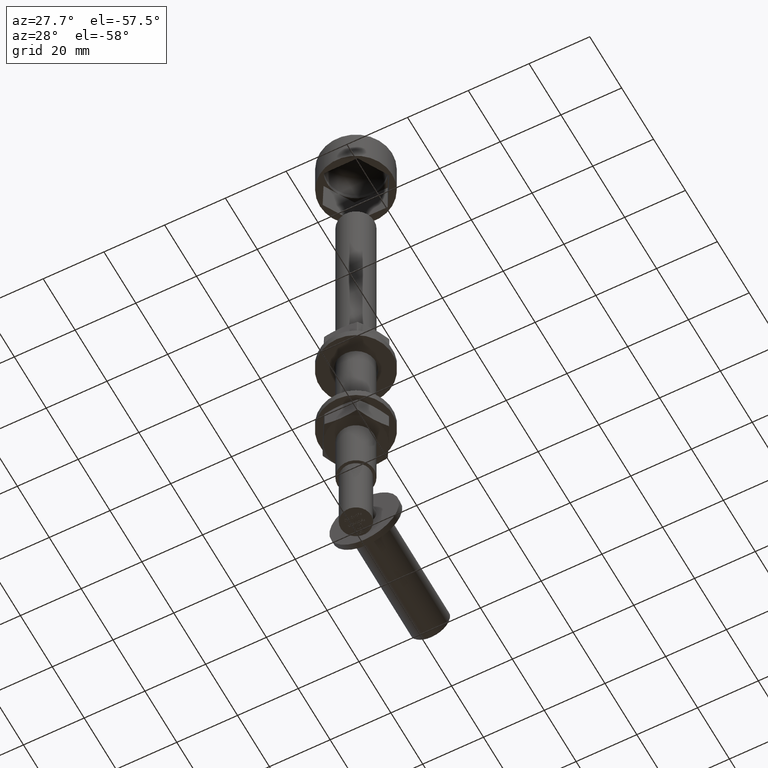
[diagram: clean part render]
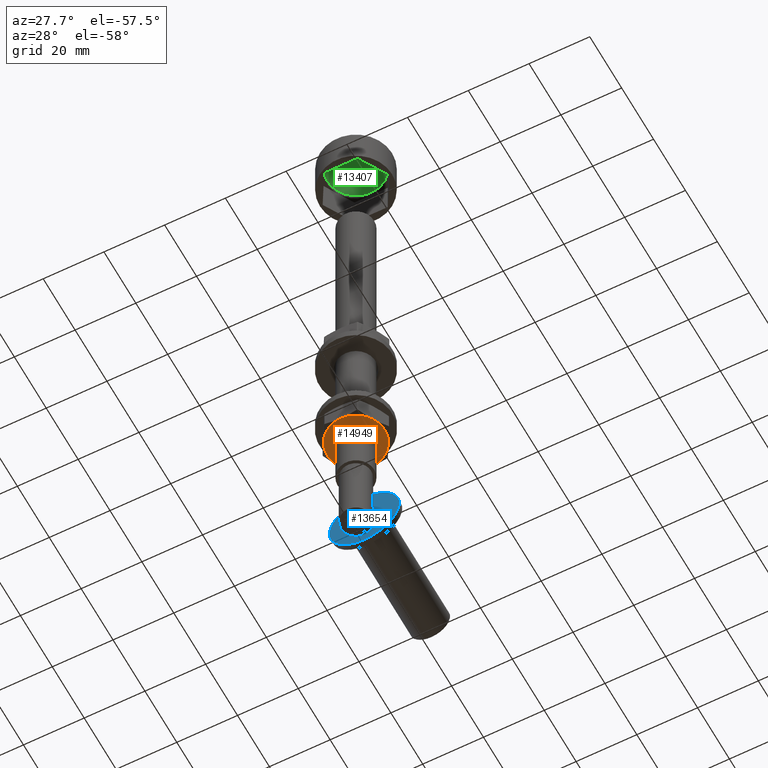
[diagram: same view with three faces highlighted in distinct colors, each labeled with its STEP entity id]
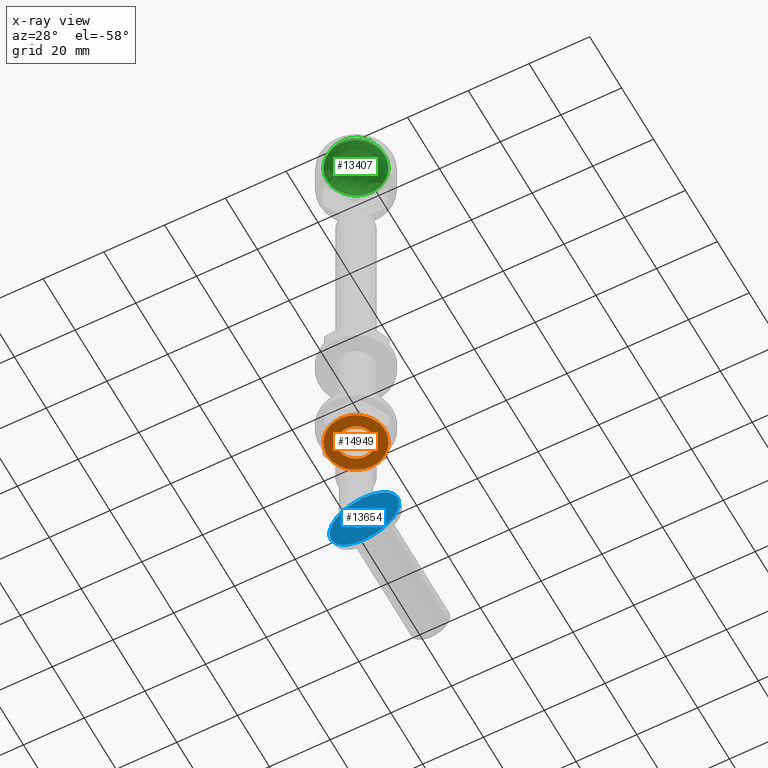
[diagram: x-ray of the same camera — body ghosted, the three highlighted faces saturated]
A machine part, auxiliary view with three faces highlighted in distinct colors.
The next image is the same camera in x-ray (body ghosted, the three faces saturated) — at least one of them is partly hidden behind the body in this view.
Their STEP definitions:

[orange] entity #14949 — the highlighted planar face has unit normal (0, 0, 1).
#145 = AXIS2_PLACEMENT_3D ( 'NONE', #13799, #7637, #389 ) ;
#160 = DIRECTION ( 'NONE',  ( -0.000000000000000000, -1.000000000000000000, -0.000000000000000000 ) ) ;
#305 = DIRECTION ( 'NONE',  ( -0.000000000000000000, -1.000000000000000000, -0.000000000000000000 ) ) ;
#344 = PLANE ( 'NONE',  #145 ) ;
#389 = DIRECTION ( 'NONE',  ( 0.000000000000000000, -0.000000000000000000, 1.000000000000000000 ) ) ;
#446 = EDGE_CURVE ( 'NONE', #7362, #8914, #2697, .T. ) ;
#586 = CIRCLE ( 'NONE', #2521, 5.600000000000000533 ) ;
#908 = EDGE_CURVE ( 'NONE', #10890, #10890, #586, .T. ) ;
#1633 = CARTESIAN_POINT ( 'NONE',  ( 0.000000000000000000, -3.500000000000000000, 0.000000000000000000 ) ) ;
#1756 = DIRECTION ( 'NONE',  ( -3.552713678800500929E-15, 0.000000000000000000, 1.000000000000000000 ) ) ;
#1961 = VERTEX_POINT ( 'NONE', #12492 ) ;
#1995 = DIRECTION ( 'NONE',  ( 0.000000000000000000, 0.000000000000000000, -1.000000000000000000 ) ) ;
#2243 = EDGE_CURVE ( 'NONE', #1961, #10273, #15494, .T. ) ;
#2320 = DIRECTION ( 'NONE',  ( -0.000000000000000000, -1.000000000000000000, -0.000000000000000000 ) ) ;
#2521 = AXIS2_PLACEMENT_3D ( 'NONE', #9905, #6226, #6073 ) ;
#2606 = CARTESIAN_POINT ( 'NONE',  ( 0.000000000000000000, -3.500000000000000000, 0.000000000000000000 ) ) ;
#2697 = CIRCLE ( 'NONE', #10264, 9.499999999999998224 ) ;
#3327 = CARTESIAN_POINT ( 'NONE',  ( 0.000000000000000000, -3.500000000000000000, 9.499999999999998224 ) ) ;
#3432 = EDGE_CURVE ( 'NONE', #6619, #1961, #11548, .T. ) ;
#3453 = CARTESIAN_POINT ( 'NONE',  ( 0.000000000000000000, -3.500000000000000000, 0.000000000000000000 ) ) ;
#3855 = DIRECTION ( 'NONE',  ( 0.000000000000000000, 0.000000000000000000, 1.000000000000000000 ) ) ;
#3935 = DIRECTION ( 'NONE',  ( -0.000000000000000000, -1.000000000000000000, -0.000000000000000000 ) ) ;
#4401 = AXIS2_PLACEMENT_3D ( 'NONE', #1633, #305, #6634 ) ;
#4455 = CARTESIAN_POINT ( 'NONE',  ( 0.000000000000000000, -3.500000000000000000, 0.000000000000000000 ) ) ;
#4600 = DIRECTION ( 'NONE',  ( 0.000000000000000000, -1.000000000000000000, 0.000000000000000000 ) ) ;
#4880 = EDGE_LOOP ( 'NONE', ( #15120 ) ) ;
#4921 = DIRECTION ( 'NONE',  ( 0.000000000000000000, 0.000000000000000000, 1.000000000000000000 ) ) ;
#5030 = CARTESIAN_POINT ( 'NONE',  ( 0.000000000000000000, -3.500000000000000000, 0.000000000000000000 ) ) ;
#5038 = CARTESIAN_POINT ( 'NONE',  ( -8.227241335952165002, -3.500000000000000000, -4.750000000000000000 ) ) ;
#5282 = ORIENTED_EDGE ( 'NONE', *, *, #2243, .T. ) ;
#5704 = CIRCLE ( 'NONE', #7598, 9.499999999999998224 ) ;
#6073 = DIRECTION ( 'NONE',  ( 0.000000000000000000, 0.000000000000000000, 1.000000000000000000 ) ) ;
#6226 = DIRECTION ( 'NONE',  ( 0.000000000000000000, 1.000000000000000000, 0.000000000000000000 ) ) ;
#6246 = ORIENTED_EDGE ( 'NONE', *, *, #11069, .T. ) ;
#6418 = FACE_OUTER_BOUND ( 'NONE', #6677, .T. ) ;
#6619 = VERTEX_POINT ( 'NONE', #11978 ) ;
#6634 = DIRECTION ( 'NONE',  ( 0.000000000000000000, 0.000000000000000000, 1.000000000000000000 ) ) ;
#6677 = EDGE_LOOP ( 'NONE', ( #5282, #13788, #12709, #6985, #6246, #9829 ) ) ;
#6985 = ORIENTED_EDGE ( 'NONE', *, *, #446, .T. ) ;
#7149 = AXIS2_PLACEMENT_3D ( 'NONE', #4455, #15274, #1756 ) ;
#7362 = VERTEX_POINT ( 'NONE', #5038 ) ;
#7444 = AXIS2_PLACEMENT_3D ( 'NONE', #2606, #160, #3855 ) ;
#7598 = AXIS2_PLACEMENT_3D ( 'NONE', #11856, #4600, #1995 ) ;
#7634 = DIRECTION ( 'NONE',  ( 1.776356839400250465E-15, 0.000000000000000000, 1.000000000000000000 ) ) ;
#7637 = DIRECTION ( 'NONE',  ( 0.000000000000000000, 1.000000000000000000, 0.000000000000000000 ) ) ;
#8423 = CIRCLE ( 'NONE', #7444, 9.499999999999998224 ) ;
#8449 = AXIS2_PLACEMENT_3D ( 'NONE', #3453, #2320, #4921 ) ;
#8831 = CARTESIAN_POINT ( 'NONE',  ( -8.227241335952165002, -3.500000000000000000, 4.749999999999999112 ) ) ;
#8914 = VERTEX_POINT ( 'NONE', #11160 ) ;
#9829 = ORIENTED_EDGE ( 'NONE', *, *, #3432, .T. ) ;
#9905 = CARTESIAN_POINT ( 'NONE',  ( 0.000000000000000000, -3.500000000000000000, 0.000000000000000000 ) ) ;
#10264 = AXIS2_PLACEMENT_3D ( 'NONE', #5030, #3935, #7634 ) ;
#10273 = VERTEX_POINT ( 'NONE', #3327 ) ;
#10890 = VERTEX_POINT ( 'NONE', #12604 ) ;
#11069 = EDGE_CURVE ( 'NONE', #8914, #6619, #5704, .T. ) ;
#11160 = CARTESIAN_POINT ( 'NONE',  ( -1.502314598737159623E-15, -3.500000000000000000, -9.499999999999998224 ) ) ;
#11165 = EDGE_CURVE ( 'NONE', #14694, #7362, #12076, .T. ) ;
#11548 = CIRCLE ( 'NONE', #4401, 9.499999999999998224 ) ;
#11856 = CARTESIAN_POINT ( 'NONE',  ( 0.000000000000000000, -3.500000000000000000, 0.000000000000000000 ) ) ;
#11978 = CARTESIAN_POINT ( 'NONE',  ( 8.227241335952163226, -3.500000000000000000, -4.750000000000003553 ) ) ;
#12076 = CIRCLE ( 'NONE', #8449, 9.499999999999998224 ) ;
#12492 = CARTESIAN_POINT ( 'NONE',  ( 8.227241335952165002, -3.500000000000000000, 4.749999999999998224 ) ) ;
#12604 = CARTESIAN_POINT ( 'NONE',  ( 0.000000000000000000, -3.500000000000000000, 5.600000000000000533 ) ) ;
#12709 = ORIENTED_EDGE ( 'NONE', *, *, #11165, .T. ) ;
#13788 = ORIENTED_EDGE ( 'NONE', *, *, #15819, .T. ) ;
#13799 = CARTESIAN_POINT ( 'NONE',  ( 0.000000000000000000, -3.500000000000000000, 0.000000000000000000 ) ) ;
#14342 = FACE_BOUND ( 'NONE', #4880, .T. ) ;
#14694 = VERTEX_POINT ( 'NONE', #8831 ) ;
#14949 = ADVANCED_FACE ( 'NONE', ( #14342, #6418 ), #344, .F. ) ;
#15120 = ORIENTED_EDGE ( 'NONE', *, *, #908, .T. ) ;
#15274 = DIRECTION ( 'NONE',  ( -0.000000000000000000, -1.000000000000000000, -0.000000000000000000 ) ) ;
#15494 = CIRCLE ( 'NONE', #7149, 9.499999999999998224 ) ;
#15819 = EDGE_CURVE ( 'NONE', #10273, #14694, #8423, .T. ) ;

[blue] entity #13654 — the highlighted planar face has unit normal (0, -1, 0).
#535 = CIRCLE ( 'NONE', #4548, 4.000000000000003553 ) ;
#1093 = DIRECTION ( 'NONE',  ( 0.000000000000000000, 0.000000000000000000, -1.000000000000000000 ) ) ;
#1951 = CARTESIAN_POINT ( 'NONE',  ( 0.000000000000000000, 5.199999999999981526, -75.00000000000001421 ) ) ;
#2195 = FACE_BOUND ( 'NONE', #15335, .T. ) ;
#2573 = ORIENTED_EDGE ( 'NONE', *, *, #7703, .F. ) ;
#3384 = VERTEX_POINT ( 'NONE', #1951 ) ;
#4548 = AXIS2_PLACEMENT_3D ( 'NONE', #8187, #14401, #10767 ) ;
#4867 = CARTESIAN_POINT ( 'NONE',  ( 0.000000000000000000, 5.199999999999982414, -71.00000000000001421 ) ) ;
#5189 = AXIS2_PLACEMENT_3D ( 'NONE', #12610, #11539, #10259 ) ;
#5468 = PLANE ( 'NONE',  #5189 ) ;
#5966 = AXIS2_PLACEMENT_3D ( 'NONE', #4867, #12176, #1093 ) ;
#6432 = FACE_OUTER_BOUND ( 'NONE', #6768, .T. ) ;
#6768 = EDGE_LOOP ( 'NONE', ( #15846 ) ) ;
#7703 = EDGE_CURVE ( 'NONE', #3384, #3384, #535, .T. ) ;
#8187 = CARTESIAN_POINT ( 'NONE',  ( 0.000000000000000000, 5.199999999999981526, -71.00000000000001421 ) ) ;
#9348 = EDGE_CURVE ( 'NONE', #12435, #12435, #14588, .T. ) ;
#10259 = DIRECTION ( 'NONE',  ( 0.000000000000000000, 0.000000000000000000, -1.000000000000000000 ) ) ;
#10767 = DIRECTION ( 'NONE',  ( 0.000000000000000000, 0.000000000000000000, -1.000000000000000000 ) ) ;
#11539 = DIRECTION ( 'NONE',  ( 0.000000000000000000, -1.000000000000000000, -0.000000000000000000 ) ) ;
#11857 = CARTESIAN_POINT ( 'NONE',  ( 0.000000000000000000, 5.199999999999982414, -82.50000000000000000 ) ) ;
#12176 = DIRECTION ( 'NONE',  ( -0.000000000000000000, -1.000000000000000000, -0.000000000000000000 ) ) ;
#12435 = VERTEX_POINT ( 'NONE', #11857 ) ;
#12610 = CARTESIAN_POINT ( 'NONE',  ( 0.000000000000000000, 5.199999999999982414, -82.50000000000000000 ) ) ;
#13654 = ADVANCED_FACE ( 'NONE', ( #6432, #2195 ), #5468, .T. ) ;
#14401 = DIRECTION ( 'NONE',  ( -0.000000000000000000, -1.000000000000000000, -0.000000000000000000 ) ) ;
#14588 = CIRCLE ( 'NONE', #5966, 11.49999999999999645 ) ;
#15335 = EDGE_LOOP ( 'NONE', ( #2573 ) ) ;
#15846 = ORIENTED_EDGE ( 'NONE', *, *, #9348, .T. ) ;

[green] entity #13407 — the highlighted spherical surface has radius 9.5805 mm.
#909 = DIRECTION ( 'NONE',  ( 1.000000000000000000, 3.621380549888468466E-16, 0.000000000000000000 ) ) ;
#1063 = FACE_OUTER_BOUND ( 'NONE', #14425, .T. ) ;
#1996 = CARTESIAN_POINT ( 'NONE',  ( -9.499999999999992895, 11.90218495934958476, 0.000000000000000000 ) ) ;
#2970 = ORIENTED_EDGE ( 'NONE', *, *, #13891, .F. ) ;
#4575 = DIRECTION ( 'NONE',  ( 0.000000000000000000, 0.000000000000000000, -1.000000000000000000 ) ) ;
#4609 = CARTESIAN_POINT ( 'NONE',  ( 2.159320426405904822E-15, 11.90218495934958831, 0.000000000000000000 ) ) ;
#5672 = SPHERICAL_SURFACE ( 'NONE', #6511, 9.580453929539292091 ) ;
#6511 = AXIS2_PLACEMENT_3D ( 'NONE', #9355, #4575, #909 ) ;
#7220 = VERTEX_POINT ( 'NONE', #1996 ) ;
#8359 = DIRECTION ( 'NONE',  ( -4.435642450600503880E-16, 1.000000000000000000, -0.000000000000000000 ) ) ;
#8560 = CIRCLE ( 'NONE', #9293, 9.499999999999994671 ) ;
#9293 = AXIS2_PLACEMENT_3D ( 'NONE', #4609, #8359, #15799 ) ;
#9355 = CARTESIAN_POINT ( 'NONE',  ( 2.524354896707237777E-26, 10.66319444444444997, 0.000000000000000000 ) ) ;
#13407 = ADVANCED_FACE ( 'NONE', ( #1063 ), #5672, .F. ) ;
#13891 = EDGE_CURVE ( 'NONE', #7220, #7220, #8560, .T. ) ;
#14425 = EDGE_LOOP ( 'NONE', ( #2970 ) ) ;
#15799 = DIRECTION ( 'NONE',  ( -1.000000000000000000, -3.652049423109069799E-16, 0.000000000000000000 ) ) ;